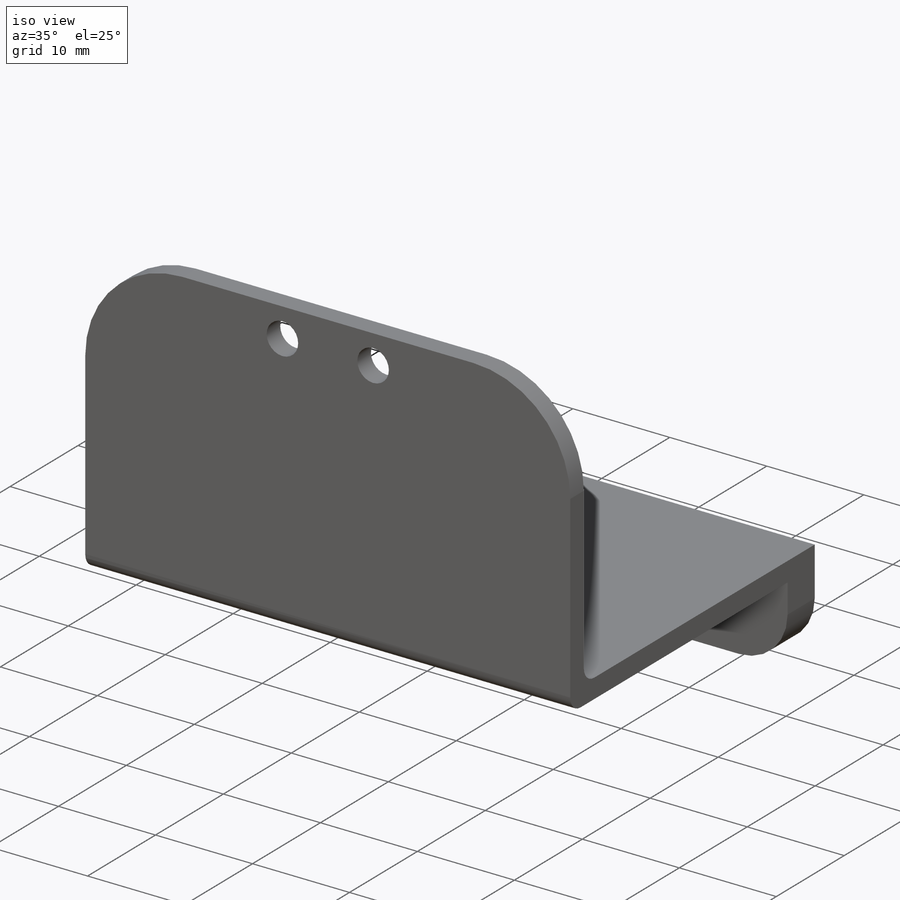
[diagram: iso view]
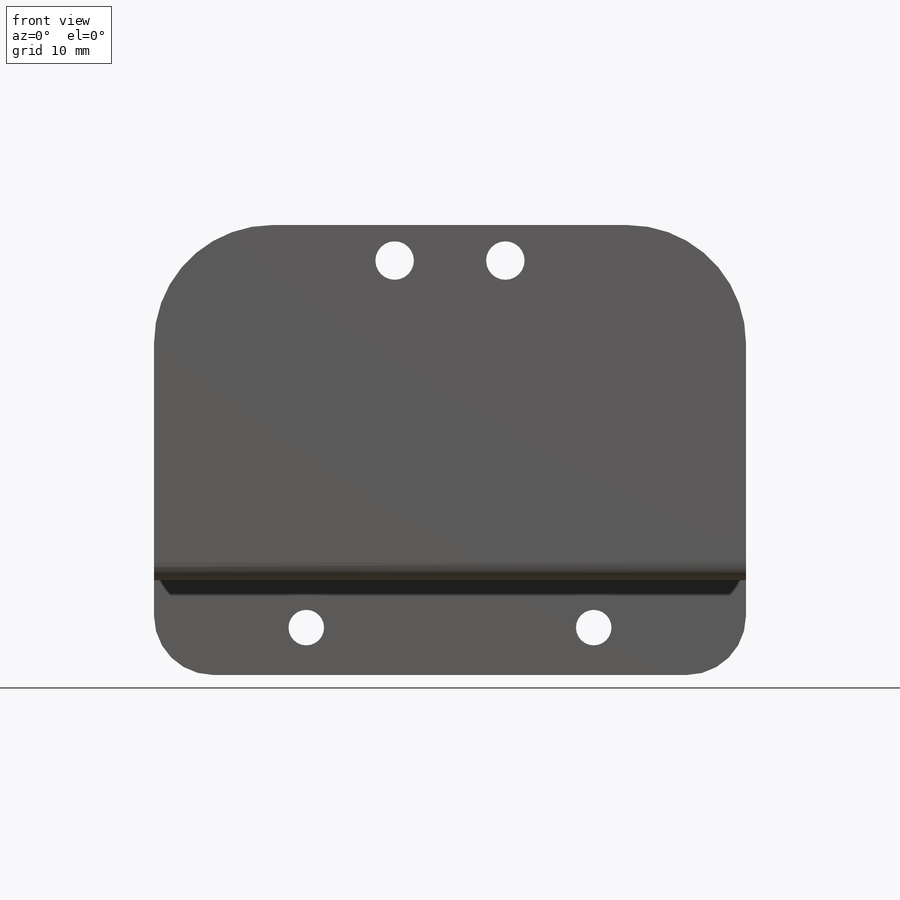
[diagram: front view]
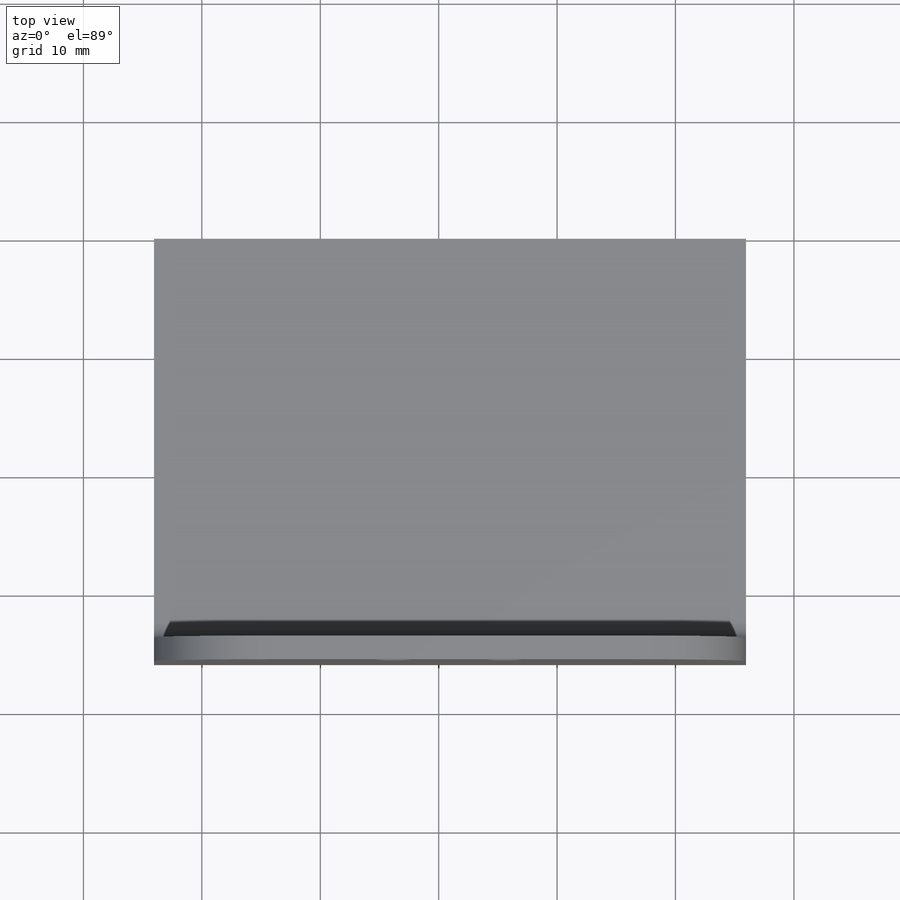
[diagram: top view]
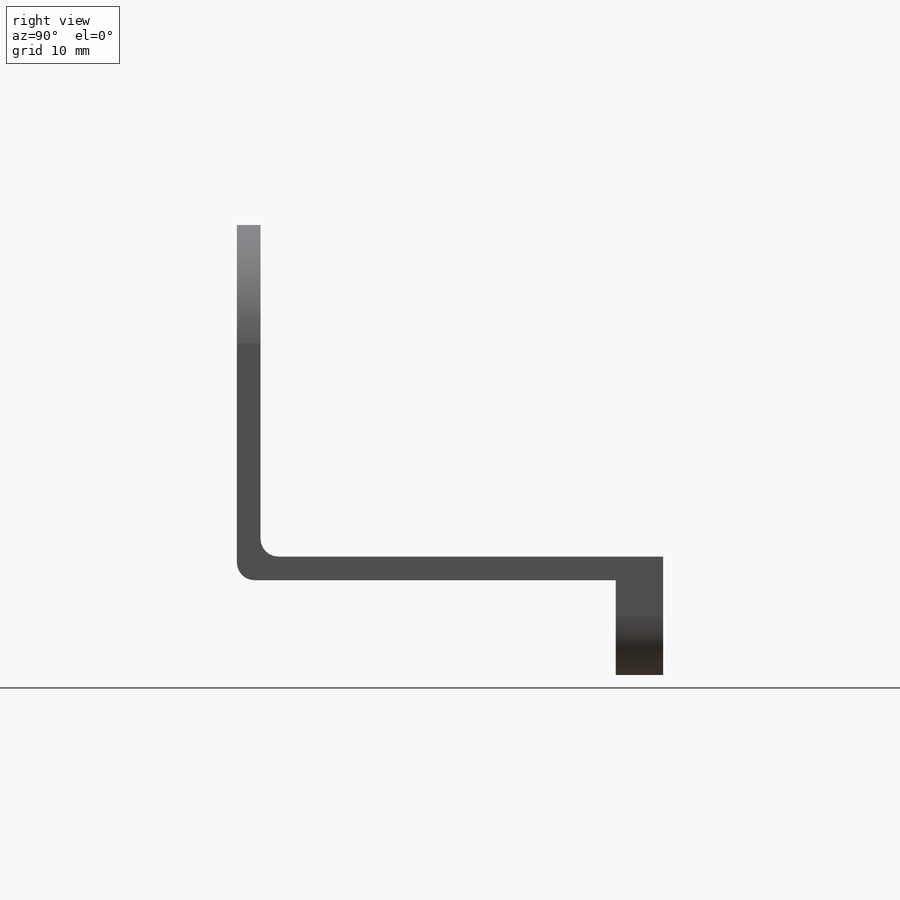
[diagram: right view]
SOLIDWORKS PART (.sldprt)
format: sldprt  version: not decoded by parser v0  size: 198,656 bytes
history: native  units: mm
features: sketch x4, extrude x3, fillet x3, material x1, cut_extrude x1 + 1 further entry (+10 scaffold rows collapsed)
feature tree (23):
  scaffold x10  (default folders/planes/origin — collapsed)
  material  "Material <not specified>"
  "Annotations"  RD1=50mm
  sketch  "Sketch1"  dims[c1.D3=3.0mm c1.D1=50.0mm c1.D2=8.0mm c2.D3=30.0mm]
  extrude  "Boss-Extrude1"  Depth=4mm
  sketch  "Sketch2"  dims[D1=2.0mm]
  extrude  "Boss-Extrude2"  Depth=30mm
  sketch  "Sketch3"  dims[D1=2.0mm D2=30.0mm]
  extrude  "Boss-Extrude3"  Depth=50mm
  sketch  "Sketch4"  dims[D1=3.25mm D2=4.675mm D3=3.0mm]
  fillet  "Fillet1"  Radius=10mm
  fillet  "Fillet2"  Radius=5mm
  fillet  "Fillet3"  Radius=1.5mm
  cut_extrude  "Cut-Extrude1"  Depth=13mm
decode coverage: 11 of 11 modeling features carry decoded parameters; 1 rows unclassified (native names shown)
note: suppression state not decoded; provenance and decode notes live in map.json
